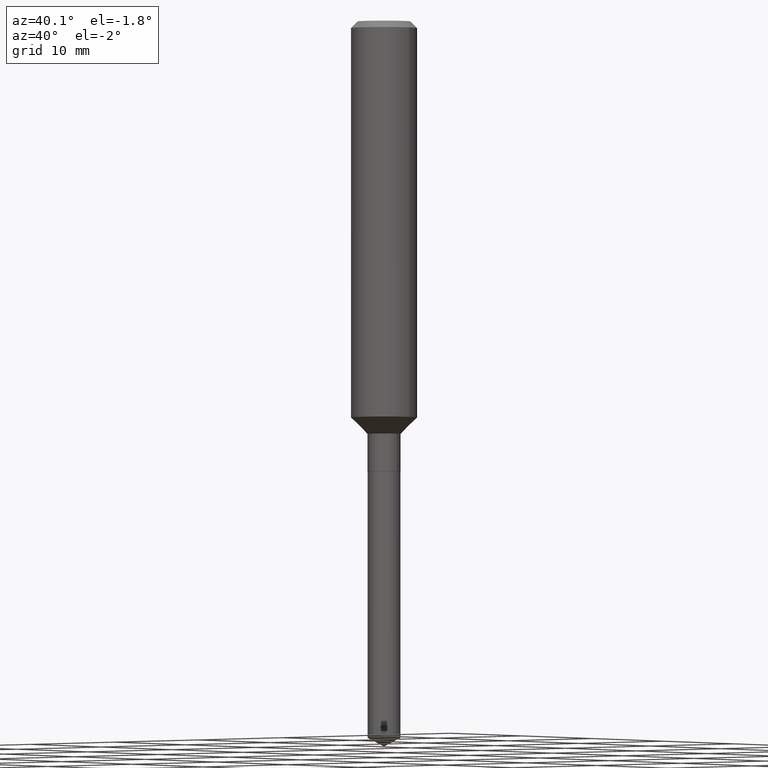
[diagram: clean part render]
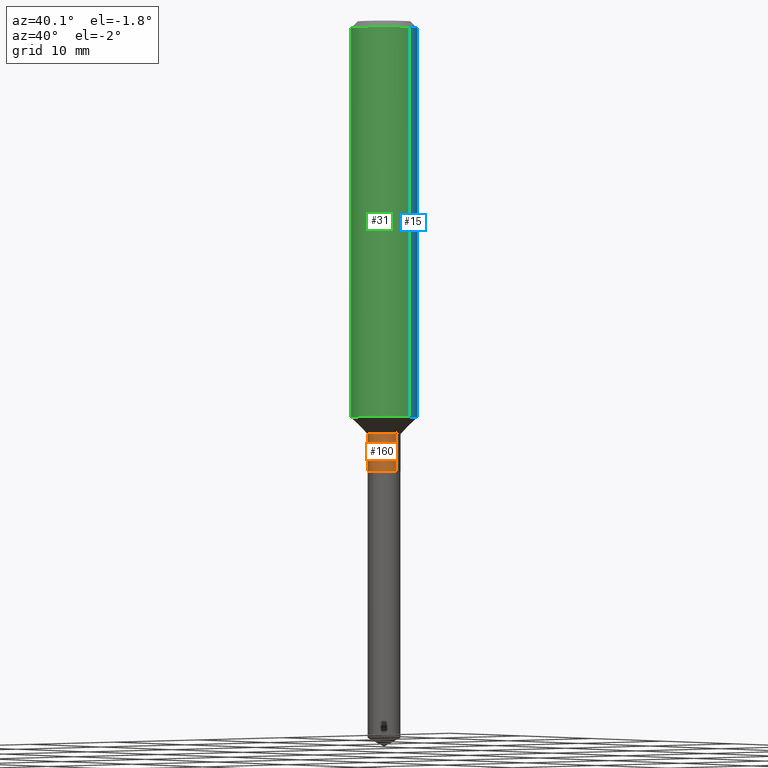
[diagram: same view with three faces highlighted in distinct colors, each labeled with its STEP entity id]
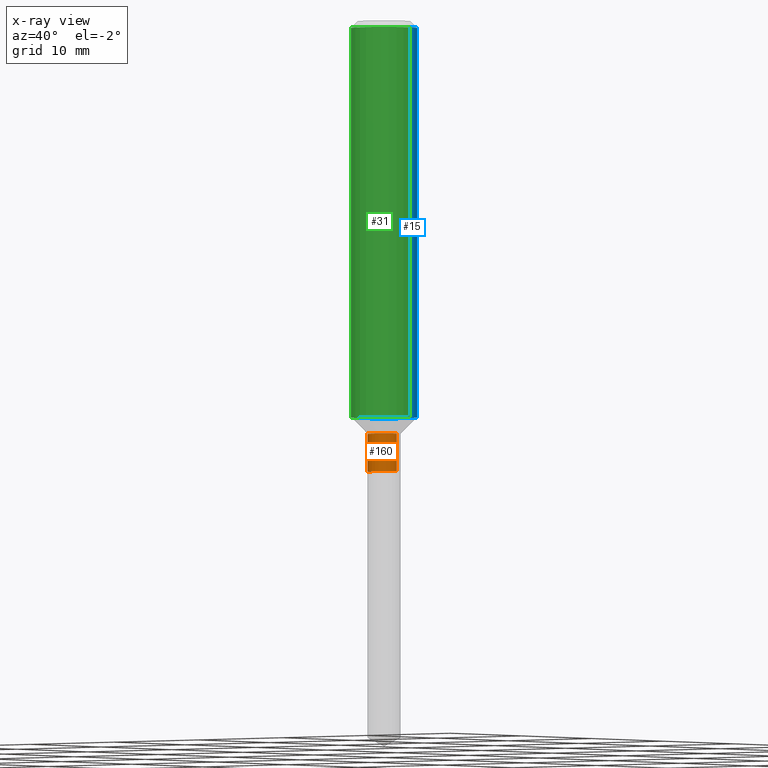
[diagram: x-ray of the same camera — body ghosted, the three highlighted faces saturated]
A machine part, auxiliary view with three faces highlighted in distinct colors.
The next image is the same camera in x-ray (body ghosted, the three faces saturated) — at least one of them is partly hidden behind the body in this view.
Their STEP definitions:

[orange] entity #160 — the highlighted cylindrical surface (edge-blend (fillet) strip) has radius 1.4999 mm, axis along (-0, 0, 1).
#28 = AXIS2_PLACEMENT_3D ( 'NONE', #131, #236, #472 ) ;
#33 = ORIENTED_EDGE ( 'NONE', *, *, #167, .T. ) ;
#39 = EDGE_CURVE ( 'NONE', #463, #303, #237, .T. ) ;
#46 = DIRECTION ( 'NONE',  ( -2.445468806185136877E-29, 3.491481338843145188E-15, 1.000000000000000000 ) ) ;
#65 = DIRECTION ( 'NONE',  ( 1.000000000000000000, -6.982962677686267499E-15, 4.876176775795935793E-29 ) ) ;
#82 = DIRECTION ( 'NONE',  ( 1.000000000000000000, -6.982962677686270655E-15, 0.000000000000000000 ) ) ;
#118 = AXIS2_PLACEMENT_3D ( 'NONE', #157, #122, #82 ) ;
#122 = DIRECTION ( 'NONE',  ( -2.445468806185136597E-29, 3.491481338843145583E-15, 1.000000000000000000 ) ) ;
#131 = CARTESIAN_POINT ( 'NONE',  ( 3.615136536183486392E-29, -5.161456863211820978E-15, -1.478299999999999725 ) ) ;
#137 = DIRECTION ( 'NONE',  ( -2.445468806185136877E-29, 3.491481338843145188E-15, 1.000000000000000000 ) ) ;
#157 = CARTESIAN_POINT ( 'NONE',  ( 3.946008465660335244E-29, -5.633854288357298776E-15, -1.613599999999999701 ) ) ;
#160 = ADVANCED_FACE ( 'NONE', ( #403 ), #217, .T. ) ;
#167 = EDGE_CURVE ( 'NONE', #336, #346, #365, .T. ) ;
#199 = ORIENTED_EDGE ( 'NONE', *, *, #421, .F. ) ;
#217 = CYLINDRICAL_SURFACE ( 'NONE', #440, 0.05904999999999985955 ) ;
#221 = DIRECTION ( 'NONE',  ( -2.445468806185136597E-29, 3.491481338843145583E-15, 1.000000000000000000 ) ) ;
#236 = DIRECTION ( 'NONE',  ( -2.445468806185136597E-29, 3.491481338843145583E-15, 1.000000000000000000 ) ) ;
#237 = LINE ( 'NONE', #383, #363 ) ;
#254 = CARTESIAN_POINT ( 'NONE',  ( 0.000000000000000000, 0.000000000000000000, 0.000000000000000000 ) ) ;
#257 = CARTESIAN_POINT ( 'NONE',  ( 0.05904999999999988036, -6.046198234474672118E-15, -1.613599999999999701 ) ) ;
#259 = CARTESIAN_POINT ( 'NONE',  ( -0.05904999999999984567, -4.978080090318222356E-15, -1.478299999999999725 ) ) ;
#263 = CIRCLE ( 'NONE', #118, 0.05904999999999988036 ) ;
#278 = CARTESIAN_POINT ( 'NONE',  ( -0.05904999999999988036, -4.978080090318222356E-15, -1.613599999999999701 ) ) ;
#303 = VERTEX_POINT ( 'NONE', #259 ) ;
#324 = CARTESIAN_POINT ( 'NONE',  ( 0.05904999999999985955, -4.123439461173730959E-16, 2.879382386107493214E-30 ) ) ;
#336 = VERTEX_POINT ( 'NONE', #257 ) ;
#345 = CARTESIAN_POINT ( 'NONE',  ( 0.05904999999999984567, -5.573800809329193531E-15, -1.478299999999999725 ) ) ;
#346 = VERTEX_POINT ( 'NONE', #345 ) ;
#363 = VECTOR ( 'NONE', #46, 39.37007874015748143 ) ;
#365 = LINE ( 'NONE', #324, #405 ) ;
#380 = EDGE_CURVE ( 'NONE', #463, #336, #263, .T. ) ;
#383 = CARTESIAN_POINT ( 'NONE',  ( -0.05904999999999985955, 4.195754854663381618E-16, -2.904631170795515236E-30 ) ) ;
#387 = ORIENTED_EDGE ( 'NONE', *, *, #380, .T. ) ;
#396 = CIRCLE ( 'NONE', #28, 0.05904999999999984567 ) ;
#403 = FACE_OUTER_BOUND ( 'NONE', #423, .T. ) ;
#405 = VECTOR ( 'NONE', #137, 39.37007874015748143 ) ;
#421 = EDGE_CURVE ( 'NONE', #303, #346, #396, .T. ) ;
#423 = EDGE_LOOP ( 'NONE', ( #489, #387, #33, #199 ) ) ;
#440 = AXIS2_PLACEMENT_3D ( 'NONE', #254, #221, #65 ) ;
#463 = VERTEX_POINT ( 'NONE', #278 ) ;
#472 = DIRECTION ( 'NONE',  ( 1.000000000000000000, -6.982962677686258033E-15, 0.000000000000000000 ) ) ;
#489 = ORIENTED_EDGE ( 'NONE', *, *, #39, .F. ) ;

[blue] entity #15 — the highlighted cylindrical surface (edge-blend (fillet) strip) has radius 2.9997 mm, axis along (-0, 0, 1).
#12 = CARTESIAN_POINT ( 'NONE',  ( -0.1181000000000001354, -4.116133919220453348E-15, -1.419249999999999678 ) ) ;
#13 = AXIS2_PLACEMENT_3D ( 'NONE', #109, #185, #479 ) ;
#15 = ADVANCED_FACE ( 'NONE', ( #169 ), #464, .T. ) ;
#22 = CIRCLE ( 'NONE', #13, 0.1180999999999999966 ) ;
#26 = LINE ( 'NONE', #367, #334 ) ;
#38 = VERTEX_POINT ( 'NONE', #12 ) ;
#63 = CARTESIAN_POINT ( 'NONE',  ( 0.1181000000000000660, -8.246878922347485584E-16, 5.758764772215003944E-30 ) ) ;
#77 = ORIENTED_EDGE ( 'NONE', *, *, #182, .T. ) ;
#109 = CARTESIAN_POINT ( 'NONE',  ( 5.776197320209328408E-31, -8.246878922347560526E-17, -0.02362000000000014435 ) ) ;
#126 = AXIS2_PLACEMENT_3D ( 'NONE', #135, #200, #279 ) ;
#129 = VERTEX_POINT ( 'NONE', #436 ) ;
#135 = CARTESIAN_POINT ( 'NONE',  ( 0.000000000000000000, 0.000000000000000000, 0.000000000000000000 ) ) ;
#138 = EDGE_CURVE ( 'NONE', #38, #343, #26, .T. ) ;
#152 = EDGE_CURVE ( 'NONE', #129, #343, #22, .T. ) ;
#169 = FACE_OUTER_BOUND ( 'NONE', #369, .T. ) ;
#171 = ORIENTED_EDGE ( 'NONE', *, *, #152, .F. ) ;
#182 = EDGE_CURVE ( 'NONE', #394, #38, #286, .T. ) ;
#185 = DIRECTION ( 'NONE',  ( -2.445468806185136597E-29, 3.491481338843145583E-15, 1.000000000000000000 ) ) ;
#193 = ORIENTED_EDGE ( 'NONE', *, *, #252, .F. ) ;
#198 = CARTESIAN_POINT ( 'NONE',  ( 0.1181000000000001354, -5.779972782387881386E-15, -1.419249999999999678 ) ) ;
#200 = DIRECTION ( 'NONE',  ( -2.445468806185136597E-29, 3.491481338843145583E-15, 1.000000000000000000 ) ) ;
#235 = ORIENTED_EDGE ( 'NONE', *, *, #138, .T. ) ;
#252 = EDGE_CURVE ( 'NONE', #394, #129, #253, .T. ) ;
#253 = LINE ( 'NONE', #63, #465 ) ;
#279 = DIRECTION ( 'NONE',  ( 1.000000000000000000, -6.982962677686266711E-15, 4.876176775795936353E-29 ) ) ;
#285 = DIRECTION ( 'NONE',  ( 1.000000000000000000, -6.982962677686265133E-15, 0.000000000000000000 ) ) ;
#286 = CIRCLE ( 'NONE', #350, 0.1181000000000001354 ) ;
#302 = CARTESIAN_POINT ( 'NONE',  ( -0.1180999999999999966, -1.679725868755624910E-15, -0.02362000000000014435 ) ) ;
#329 = DIRECTION ( 'NONE',  ( -2.445468806185136877E-29, 3.491481338843145188E-15, 1.000000000000000000 ) ) ;
#334 = VECTOR ( 'NONE', #485, 39.37007874015748143 ) ;
#343 = VERTEX_POINT ( 'NONE', #302 ) ;
#350 = AXIS2_PLACEMENT_3D ( 'NONE', #439, #445, #285 ) ;
#367 = CARTESIAN_POINT ( 'NONE',  ( -0.1181000000000000660, 8.391509709326787887E-16, -5.809262341591047287E-30 ) ) ;
#369 = EDGE_LOOP ( 'NONE', ( #77, #235, #171, #193 ) ) ;
#394 = VERTEX_POINT ( 'NONE', #198 ) ;
#436 = CARTESIAN_POINT ( 'NONE',  ( 0.1180999999999999966, -9.071566814582237199E-16, -0.02362000000000014435 ) ) ;
#439 = CARTESIAN_POINT ( 'NONE',  ( 3.470731603178253891E-29, -4.955284890153133123E-15, -1.419249999999999678 ) ) ;
#445 = DIRECTION ( 'NONE',  ( -2.445468806185136597E-29, 3.491481338843145583E-15, 1.000000000000000000 ) ) ;
#464 = CYLINDRICAL_SURFACE ( 'NONE', #126, 0.1181000000000000660 ) ;
#465 = VECTOR ( 'NONE', #329, 39.37007874015748143 ) ;
#479 = DIRECTION ( 'NONE',  ( 1.000000000000000000, -6.982962677686266711E-15, 0.000000000000000000 ) ) ;
#485 = DIRECTION ( 'NONE',  ( -2.445468806185136877E-29, 3.491481338843145188E-15, 1.000000000000000000 ) ) ;

[green] entity #31 — the highlighted cylindrical surface (edge-blend (fillet) strip) has radius 2.9997 mm, axis along (-0, 0, 1).
#8 = ORIENTED_EDGE ( 'NONE', *, *, #366, .T. ) ;
#12 = CARTESIAN_POINT ( 'NONE',  ( -0.1181000000000001354, -4.116133919220453348E-15, -1.419249999999999678 ) ) ;
#26 = LINE ( 'NONE', #367, #334 ) ;
#31 = ADVANCED_FACE ( 'NONE', ( #311 ), #134, .T. ) ;
#38 = VERTEX_POINT ( 'NONE', #12 ) ;
#63 = CARTESIAN_POINT ( 'NONE',  ( 0.1181000000000000660, -8.246878922347485584E-16, 5.758764772215003944E-30 ) ) ;
#86 = DIRECTION ( 'NONE',  ( 1.000000000000000000, -6.982962677686266711E-15, 0.000000000000000000 ) ) ;
#87 = DIRECTION ( 'NONE',  ( -2.445468806185136597E-29, 3.491481338843145583E-15, 1.000000000000000000 ) ) ;
#94 = CIRCLE ( 'NONE', #487, 0.1180999999999999966 ) ;
#101 = CIRCLE ( 'NONE', #481, 0.1181000000000001354 ) ;
#129 = VERTEX_POINT ( 'NONE', #436 ) ;
#132 = DIRECTION ( 'NONE',  ( 1.000000000000000000, -6.982962677686266711E-15, 4.876176775795936353E-29 ) ) ;
#134 = CYLINDRICAL_SURFACE ( 'NONE', #173, 0.1181000000000000660 ) ;
#138 = EDGE_CURVE ( 'NONE', #38, #343, #26, .T. ) ;
#161 = ORIENTED_EDGE ( 'NONE', *, *, #138, .F. ) ;
#173 = AXIS2_PLACEMENT_3D ( 'NONE', #277, #87, #132 ) ;
#195 = ORIENTED_EDGE ( 'NONE', *, *, #453, .F. ) ;
#198 = CARTESIAN_POINT ( 'NONE',  ( 0.1181000000000001354, -5.779972782387881386E-15, -1.419249999999999678 ) ) ;
#216 = ORIENTED_EDGE ( 'NONE', *, *, #252, .T. ) ;
#252 = EDGE_CURVE ( 'NONE', #394, #129, #253, .T. ) ;
#253 = LINE ( 'NONE', #63, #465 ) ;
#277 = CARTESIAN_POINT ( 'NONE',  ( 0.000000000000000000, 0.000000000000000000, 0.000000000000000000 ) ) ;
#298 = DIRECTION ( 'NONE',  ( -2.445468806185136597E-29, 3.491481338843145583E-15, 1.000000000000000000 ) ) ;
#302 = CARTESIAN_POINT ( 'NONE',  ( -0.1180999999999999966, -1.679725868755624910E-15, -0.02362000000000014435 ) ) ;
#306 = DIRECTION ( 'NONE',  ( 1.000000000000000000, -6.982962677686265133E-15, 0.000000000000000000 ) ) ;
#311 = FACE_OUTER_BOUND ( 'NONE', #466, .T. ) ;
#329 = DIRECTION ( 'NONE',  ( -2.445468806185136877E-29, 3.491481338843145188E-15, 1.000000000000000000 ) ) ;
#334 = VECTOR ( 'NONE', #485, 39.37007874015748143 ) ;
#343 = VERTEX_POINT ( 'NONE', #302 ) ;
#366 = EDGE_CURVE ( 'NONE', #38, #394, #101, .T. ) ;
#367 = CARTESIAN_POINT ( 'NONE',  ( -0.1181000000000000660, 8.391509709326787887E-16, -5.809262341591047287E-30 ) ) ;
#394 = VERTEX_POINT ( 'NONE', #198 ) ;
#427 = CARTESIAN_POINT ( 'NONE',  ( 5.776197320209328408E-31, -8.246878922347560526E-17, -0.02362000000000014435 ) ) ;
#433 = DIRECTION ( 'NONE',  ( -2.445468806185136597E-29, 3.491481338843145583E-15, 1.000000000000000000 ) ) ;
#436 = CARTESIAN_POINT ( 'NONE',  ( 0.1180999999999999966, -9.071566814582237199E-16, -0.02362000000000014435 ) ) ;
#453 = EDGE_CURVE ( 'NONE', #343, #129, #94, .T. ) ;
#459 = CARTESIAN_POINT ( 'NONE',  ( 3.470731603178253891E-29, -4.955284890153133123E-15, -1.419249999999999678 ) ) ;
#465 = VECTOR ( 'NONE', #329, 39.37007874015748143 ) ;
#466 = EDGE_LOOP ( 'NONE', ( #161, #8, #216, #195 ) ) ;
#481 = AXIS2_PLACEMENT_3D ( 'NONE', #459, #298, #306 ) ;
#485 = DIRECTION ( 'NONE',  ( -2.445468806185136877E-29, 3.491481338843145188E-15, 1.000000000000000000 ) ) ;
#487 = AXIS2_PLACEMENT_3D ( 'NONE', #427, #433, #86 ) ;